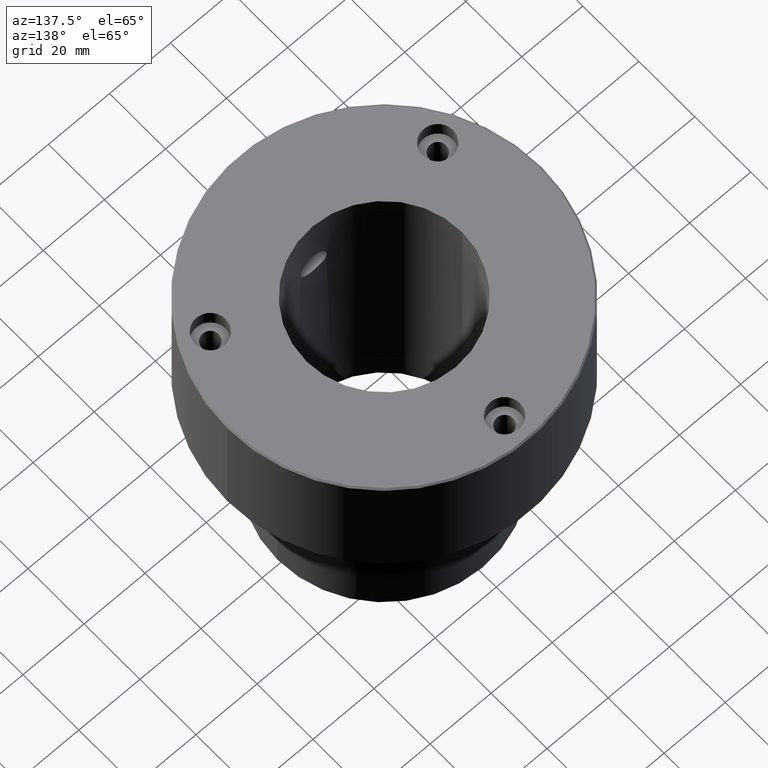
[diagram: clean part render]
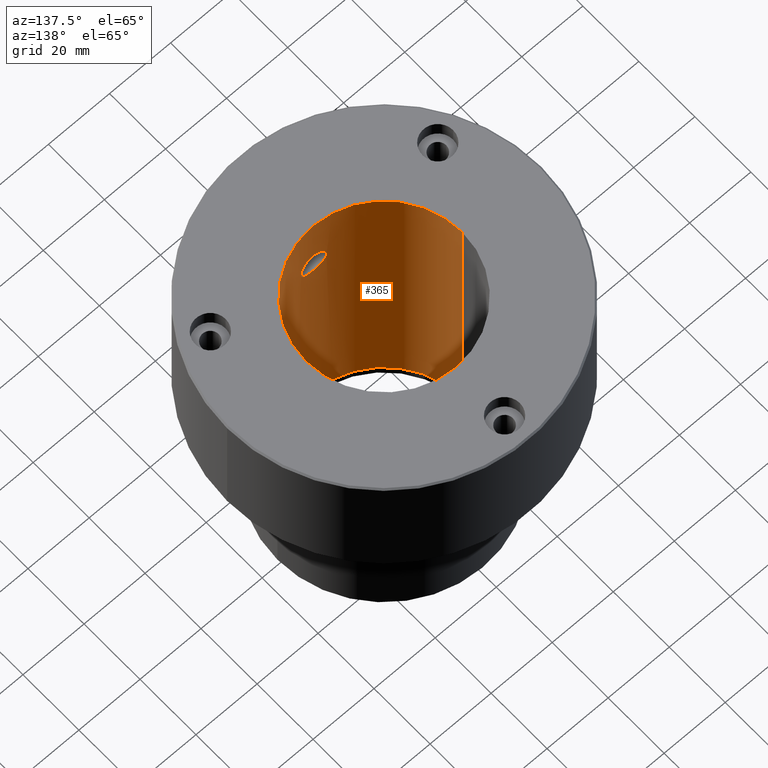
[diagram: same view with one face highlighted and labeled with its STEP entity id]
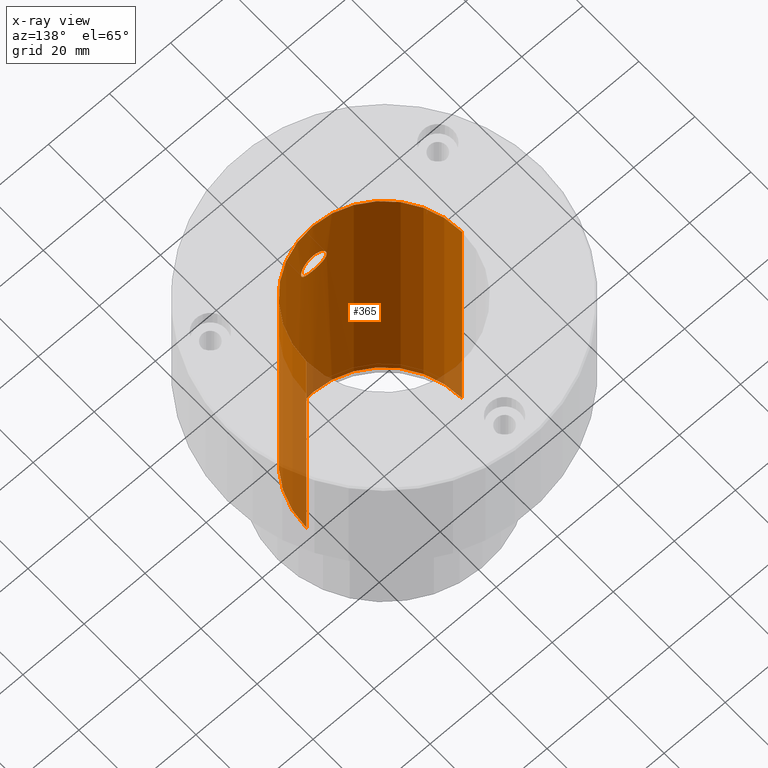
[diagram: x-ray of the same camera — body ghosted, the highlighted face saturated]
A machine part, auxiliary view. The second image highlights one B-rep face of the part: STEP entity #365.
The next image is the same camera in x-ray: the body ghosted, the highlighted face saturated — about 14% of this face is hidden behind the body in this view.
In plain terms, the highlighted cylindrical surface (partial cylindrical patch) has radius 25.5 mm, axis along (-0, -0, -1).
Its self-contained STEP definition (entity closure, byte-faithful):
#4 = CARTESIAN_POINT ( 'NONE',  ( -2.116391715035989218, -25.41307818107932803, -24.90732187581156865 ) ) ;
#14 = CARTESIAN_POINT ( 'NONE',  ( 0.000000000000000000, 0.000000000000000000, -95.00000000000000000 ) ) ;
#38 = CARTESIAN_POINT ( 'NONE',  ( 1.871541207951981090, -25.43251327011070018, -25.03836613992906024 ) ) ;
#53 = CARTESIAN_POINT ( 'NONE',  ( -2.113424443738458613, -25.41331802866312373, -17.59104806631358997 ) ) ;
#63 = EDGE_LOOP ( 'NONE', ( #782, #111, #219, #710 ) ) ;
#64 = CARTESIAN_POINT ( 'NONE',  ( 2.785143540015348140, -25.34821599629934141, -18.07225004226379639 ) ) ;
#80 = CARTESIAN_POINT ( 'NONE',  ( 25.50000000000000000, 3.122849337825750222E-15, 0.000000000000000000 ) ) ;
#89 = CARTESIAN_POINT ( 'NONE',  ( -25.50000000000000000, 0.000000000000000000, 0.000000000000000000 ) ) ;
#99 = CARTESIAN_POINT ( 'NONE',  ( -3.660640428422397452, -25.23635400937047280, -23.36038752228353133 ) ) ;
#111 = ORIENTED_EDGE ( 'NONE', *, *, #659, .T. ) ;
#112 = CARTESIAN_POINT ( 'NONE',  ( -3.789940242434755024, -25.21701347392820836, -23.11829666948640849 ) ) ;
#114 = VERTEX_POINT ( 'NONE', #1094 ) ;
#115 = CARTESIAN_POINT ( 'NONE',  ( 1.093034458247597707, -25.47799325358833045, -25.33154113433378285 ) ) ;
#118 = CARTESIAN_POINT ( 'NONE',  ( -25.50000000000000000, 0.000000000000000000, 0.000000000000000000 ) ) ;
#142 = CARTESIAN_POINT ( 'NONE',  ( 3.789544513599316211, -25.21707409734397132, -19.38080494757549488 ) ) ;
#149 = CARTESIAN_POINT ( 'NONE',  ( 1.096625499131874459, -25.47784856406106968, -17.16935748008194551 ) ) ;
#182 = CIRCLE ( 'NONE', #1179, 25.50000000000000000 ) ;
#219 = ORIENTED_EDGE ( 'NONE', *, *, #524, .T. ) ;
#230 = CARTESIAN_POINT ( 'NONE',  ( 0.000000000000000000, -25.50000000000000000, -25.46640000000000725 ) ) ;
#242 = CARTESIAN_POINT ( 'NONE',  ( -0.2753627516284092858, -25.50000000000000355, -17.03359999999999630 ) ) ;
#243 = CARTESIAN_POINT ( 'NONE',  ( 1.869611449621641164, -25.43265362280505926, -17.46069723322010603 ) ) ;
#263 = CARTESIAN_POINT ( 'NONE',  ( 4.188958161258274693, -25.15364026530606267, -20.69612184186518533 ) ) ;
#278 = CARTESIAN_POINT ( 'NONE',  ( -4.080854030105978580, -25.17140457324940428, -20.15445814051817663 ) ) ;
#293 = DIRECTION ( 'NONE',  ( -0.000000000000000000, -0.000000000000000000, -1.000000000000000000 ) ) ;
#295 = CARTESIAN_POINT ( 'NONE',  ( -4.001119552626871467, -25.18436931731844197, -22.60838941840230376 ) ) ;
#299 = CARTESIAN_POINT ( 'NONE',  ( -4.188548331037955208, -25.15370828891422761, -20.69354294013977480 ) ) ;
#323 = CARTESIAN_POINT ( 'NONE',  ( -1.867610715253976705, -25.43278745327931745, -17.45981530270229243 ) ) ;
#332 = CARTESIAN_POINT ( 'NONE',  ( -2.785141719531619042, -25.34820137840472043, -18.07249652722973465 ) ) ;
#340 = CARTESIAN_POINT ( 'NONE',  ( 4.081060513129728839, -25.17137132063669824, -20.15496731601088243 ) ) ;
#343 = CARTESIAN_POINT ( 'NONE',  ( -3.657586496150341482, -25.23679588863743106, -19.13442485311258423 ) ) ;
#347 = CARTESIAN_POINT ( 'NONE',  ( 3.176207609451170644, -25.30217181389181036, -24.03659470710771018 ) ) ;
#360 = CARTESIAN_POINT ( 'NONE',  ( 4.216504208955884181, -25.14897795671003422, -20.97606247332785046 ) ) ;
#365 = ADVANCED_FACE ( 'NONE', ( #418, #663 ), #474, .F. ) ;
#394 = DIRECTION ( 'NONE',  ( -1.000000000000000000, 0.000000000000000000, 0.000000000000000000 ) ) ;
#406 = VERTEX_POINT ( 'NONE', #118 ) ;
#418 = FACE_BOUND ( 'NONE', #1059, .T. ) ;
#444 = B_SPLINE_CURVE_WITH_KNOTS ( 'NONE', 3,
 ( #601, #987, #715, #115, #607, #38, #810, #616, #1032, #347, #647, #556, #1133, #847, #930, #940, #1234, #360, #263, #340, #1129, #142, #534, #540, #737, #64, #1115, #835, #243, #634, #149, #1220, #641, #744 ),
 .UNSPECIFIED., .F., .F.,
 ( 4, 2, 2, 2, 2, 2, 2, 2, 2, 2, 2, 2, 2, 2, 2, 2, 4 ),
 ( 0.000000000000000000, 0.0008253172047675951320, 0.001650634409535190264, 0.002475951614302785396, 0.003301268819070380528, 0.004126586023837975660, 0.004951903228605570792, 0.005777220433373165924, 0.006602537638140761056, 0.007427854842908356188, 0.008253172047675951320, 0.009078489252443547319, 0.009903806457211141584, 0.01072912366197873585, 0.01155444086674633185, 0.01237975807151392785, 0.01320507527628152211 ),
 .UNSPECIFIED. ) ;
#447 = CARTESIAN_POINT ( 'NONE',  ( 0.000000000000000000, 0.000000000000000000, 0.000000000000000000 ) ) ;
#451 = VECTOR ( 'NONE', #293, 1000.000000000000000 ) ;
#474 = CYLINDRICAL_SURFACE ( 'NONE', #852, 25.50000000000000000 ) ;
#482 = DIRECTION ( 'NONE',  ( 0.000000000000000000, 0.000000000000000000, -1.000000000000000000 ) ) ;
#484 = CARTESIAN_POINT ( 'NONE',  ( -1.365858219145525076, -25.46466068254697745, -25.24847838747568574 ) ) ;
#491 = CARTESIAN_POINT ( 'NONE',  ( -3.354694581675446763, -25.27884246353355380, -23.81905587796138235 ) ) ;
#500 = EDGE_CURVE ( 'NONE', #1064, #608, #539, .T. ) ;
#517 = LINE ( 'NONE', #908, #655 ) ;
#523 = DIRECTION ( 'NONE',  ( -0.000000000000000000, -0.000000000000000000, -1.000000000000000000 ) ) ;
#524 = EDGE_CURVE ( 'NONE', #689, #114, #182, .T. ) ;
#534 = CARTESIAN_POINT ( 'NONE',  ( 3.657670792388203473, -25.23678185616040892, -19.13463080867607147 ) ) ;
#538 = CARTESIAN_POINT ( 'NONE',  ( -3.174007929228348068, -25.30245049759470177, -18.46087533757664545 ) ) ;
#539 = B_SPLINE_CURVE_WITH_KNOTS ( 'NONE', 3,
 ( #923, #242, #1193, #1202, #639, #323, #53, #1100, #332, #538, #933, #343, #740, #878, #278, #299, #1068, #695, #985, #673, #295, #112, #99, #491, #853, #1148, #868, #4, #770, #484, #886, #1056, #1242, #1154 ),
 .UNSPECIFIED., .F., .F.,
 ( 4, 2, 2, 2, 2, 2, 2, 2, 2, 2, 2, 2, 2, 2, 2, 2, 4 ),
 ( 0.01320507527628152211, 0.01403018687190946308, 0.01485529846753740404, 0.01568041006316534675, 0.01650552165879328598, 0.01733063325442122521, 0.01815574485004916791, 0.01898085644567710714, 0.01980596804130504984, 0.02063107963693298907, 0.02145619123256092831, 0.02228130282818887101, 0.02310641442381681024, 0.02393152601944475294, 0.02475663761507269217, 0.02558174921070063487, 0.02640686080632857410 ),
 .UNSPECIFIED. ) ;
#540 = CARTESIAN_POINT ( 'NONE',  ( 3.352606728832786764, -25.27911672117327768, -18.67835255859647248 ) ) ;
#556 = CARTESIAN_POINT ( 'NONE',  ( 3.658790384563155307, -25.23662935307659438, -23.36379272688156661 ) ) ;
#572 = ORIENTED_EDGE ( 'NONE', *, *, #500, .T. ) ;
#597 = ORIENTED_EDGE ( 'NONE', *, *, #684, .T. ) ;
#601 = CARTESIAN_POINT ( 'NONE',  ( 0.000000000000000000, -25.50000000000000000, -25.46640000000000725 ) ) ;
#607 = CARTESIAN_POINT ( 'NONE',  ( 1.361110099766329462, -25.46493229961025406, -25.25022046886636673 ) ) ;
#608 = VERTEX_POINT ( 'NONE', #230 ) ;
#616 = CARTESIAN_POINT ( 'NONE',  ( 2.571558367454235494, -25.37104601786260716, -24.60275611381558392 ) ) ;
#634 = CARTESIAN_POINT ( 'NONE',  ( 1.359492166693419213, -25.46501714742863598, -17.24924463637411520 ) ) ;
#639 = CARTESIAN_POINT ( 'NONE',  ( -1.360112992080216410, -25.46497084381185161, -17.24955471576778976 ) ) ;
#641 = CARTESIAN_POINT ( 'NONE',  ( 0.2754313691327018865, -25.50000000000000355, -17.03359999999999630 ) ) ;
#647 = CARTESIAN_POINT ( 'NONE',  ( 3.350563796940972505, -25.27939735091340623, -23.82460463236934345 ) ) ;
#655 = VECTOR ( 'NONE', #523, 1000.000000000000000 ) ;
#659 = EDGE_CURVE ( 'NONE', #904, #689, #517, .T. ) ;
#663 = FACE_OUTER_BOUND ( 'NONE', #63, .T. ) ;
#670 = DIRECTION ( 'NONE',  ( -0.000000000000000000, -0.000000000000000000, -1.000000000000000000 ) ) ;
#673 = CARTESIAN_POINT ( 'NONE',  ( -4.082376795831723193, -25.17115691732650617, -22.33992306332049438 ) ) ;
#684 = EDGE_CURVE ( 'NONE', #608, #1064, #444, .T. ) ;
#689 = VERTEX_POINT ( 'NONE', #1029 ) ;
#692 = EDGE_CURVE ( 'NONE', #904, #406, #1101, .T. ) ;
#695 = CARTESIAN_POINT ( 'NONE',  ( -4.216569245939910893, -25.14896705282180633, -21.52599836395986799 ) ) ;
#710 = ORIENTED_EDGE ( 'NONE', *, *, #967, .F. ) ;
#715 = CARTESIAN_POINT ( 'NONE',  ( 0.5534471586955803657, -25.49542234989137768, -25.43896151816977635 ) ) ;
#737 = CARTESIAN_POINT ( 'NONE',  ( 3.177798666438818920, -25.30198953381166049, -18.46491203586648311 ) ) ;
#740 = CARTESIAN_POINT ( 'NONE',  ( -3.787293094681560390, -25.21741371072081250, -19.37624097022190384 ) ) ;
#744 = CARTESIAN_POINT ( 'NONE',  ( 5.163598955028708148E-16, -25.50000000000000000, -17.03359999999999630 ) ) ;
#764 = CARTESIAN_POINT ( 'NONE',  ( 5.163598955028708148E-16, -25.50000000000000000, -17.03359999999999630 ) ) ;
#770 = CARTESIAN_POINT ( 'NONE',  ( -1.872818547894966823, -25.43240183385599451, -25.03760462252570562 ) ) ;
#778 = DIRECTION ( 'NONE',  ( 0.000000000000000000, 0.000000000000000000, -1.000000000000000000 ) ) ;
#782 = ORIENTED_EDGE ( 'NONE', *, *, #692, .F. ) ;
#789 = DIRECTION ( 'NONE',  ( -1.000000000000000000, 0.000000000000000000, 0.000000000000000000 ) ) ;
#810 = CARTESIAN_POINT ( 'NONE',  ( 2.113553375967275105, -25.41329928609551914, -24.90879462704440428 ) ) ;
#835 = CARTESIAN_POINT ( 'NONE',  ( 2.116419163258565384, -25.41305288348297253, -17.59293339314139004 ) ) ;
#847 = CARTESIAN_POINT ( 'NONE',  ( 3.999840217767358208, -25.18457084077915908, -22.61186983990307198 ) ) ;
#851 = CARTESIAN_POINT ( 'NONE',  ( 0.000000000000000000, 0.000000000000000000, 0.000000000000000000 ) ) ;
#852 = AXIS2_PLACEMENT_3D ( 'NONE', #851, #670, #1183 ) ;
#853 = CARTESIAN_POINT ( 'NONE',  ( -3.177300207397922183, -25.30203282816428967, -24.03532832481777248 ) ) ;
#868 = CARTESIAN_POINT ( 'NONE',  ( -2.577702780191892362, -25.37043761755232296, -24.59821826823668189 ) ) ;
#878 = CARTESIAN_POINT ( 'NONE',  ( -3.999652579283655029, -25.18460487058914055, -19.88715696731898674 ) ) ;
#886 = CARTESIAN_POINT ( 'NONE',  ( -1.099270779257816688, -25.47775163465341208, -25.33004235552737171 ) ) ;
#904 = VERTEX_POINT ( 'NONE', #80 ) ;
#908 = CARTESIAN_POINT ( 'NONE',  ( 25.50000000000000000, 3.122849337825750222E-15, 0.000000000000000000 ) ) ;
#923 = CARTESIAN_POINT ( 'NONE',  ( 5.163598955028708148E-16, -25.50000000000000000, -17.03359999999999630 ) ) ;
#926 = AXIS2_PLACEMENT_3D ( 'NONE', #447, #482, #789 ) ;
#930 = CARTESIAN_POINT ( 'NONE',  ( 4.081023316364557729, -25.17137792779376326, -22.34560440641609347 ) ) ;
#933 = CARTESIAN_POINT ( 'NONE',  ( -3.351933048434502904, -25.27920787011295900, -18.67742502193587839 ) ) ;
#940 = CARTESIAN_POINT ( 'NONE',  ( 4.189443301486568849, -25.15356004457745343, -21.80105820717854925 ) ) ;
#962 = LINE ( 'NONE', #89, #451 ) ;
#967 = EDGE_CURVE ( 'NONE', #406, #114, #962, .T. ) ;
#985 = CARTESIAN_POINT ( 'NONE',  ( -4.189400104009188830, -25.15356570405769432, -21.80014484968143407 ) ) ;
#987 = CARTESIAN_POINT ( 'NONE',  ( 0.2791032458489891011, -25.49999999999999645, -25.46640000000000725 ) ) ;
#1029 = CARTESIAN_POINT ( 'NONE',  ( 25.50000000000000000, 3.122849337825750222E-15, -95.00000000000000000 ) ) ;
#1032 = CARTESIAN_POINT ( 'NONE',  ( 2.788027575719228324, -25.34788147982126816, -24.42494993299821715 ) ) ;
#1056 = CARTESIAN_POINT ( 'NONE',  ( -0.5546735354725089717, -25.49542237093280406, -25.43897113120558373 ) ) ;
#1059 = EDGE_LOOP ( 'NONE', ( #597, #572 ) ) ;
#1064 = VERTEX_POINT ( 'NONE', #764 ) ;
#1068 = CARTESIAN_POINT ( 'NONE',  ( -4.216229183245225443, -25.14902406663277645, -20.96885452686182916 ) ) ;
#1094 = CARTESIAN_POINT ( 'NONE',  ( -25.50000000000000000, 0.000000000000000000, -95.00000000000000000 ) ) ;
#1100 = CARTESIAN_POINT ( 'NONE',  ( -2.573189784463035146, -25.37088864108824637, -17.89840538466332376 ) ) ;
#1101 = CIRCLE ( 'NONE', #926, 25.50000000000000000 ) ;
#1115 = CARTESIAN_POINT ( 'NONE',  ( 2.572678884313231329, -25.37092450604667349, -17.89818115050689684 ) ) ;
#1129 = CARTESIAN_POINT ( 'NONE',  ( 4.001260395445831008, -25.18434809359423809, -19.89189359312476668 ) ) ;
#1133 = CARTESIAN_POINT ( 'NONE',  ( 3.789451013508863930, -25.21708530377985369, -23.11908326318640405 ) ) ;
#1148 = CARTESIAN_POINT ( 'NONE',  ( -2.789587484337786361, -25.34770805245831937, -24.42356143034746196 ) ) ;
#1154 = CARTESIAN_POINT ( 'NONE',  ( 0.000000000000000000, -25.50000000000000000, -25.46640000000000725 ) ) ;
#1179 = AXIS2_PLACEMENT_3D ( 'NONE', #14, #778, #394 ) ;
#1183 = DIRECTION ( 'NONE',  ( -1.000000000000000000, 0.000000000000000000, 0.000000000000000000 ) ) ;
#1193 = CARTESIAN_POINT ( 'NONE',  ( -0.5493821869539694536, -25.49554056821209258, -17.06031297062902041 ) ) ;
#1202 = CARTESIAN_POINT ( 'NONE',  ( -1.094661302543184389, -25.47795373034117006, -17.16869937101710164 ) ) ;
#1220 = CARTESIAN_POINT ( 'NONE',  ( 0.5552273665860211205, -25.49539326054746624, -17.06121098262239144 ) ) ;
#1234 = CARTESIAN_POINT ( 'NONE',  ( 4.216295184423759501, -25.14901300109081461, -21.52713612263102050 ) ) ;
#1242 = CARTESIAN_POINT ( 'NONE',  ( -0.2790337135795504797, -25.49999999999999289, -25.46640000000000015 ) ) ;